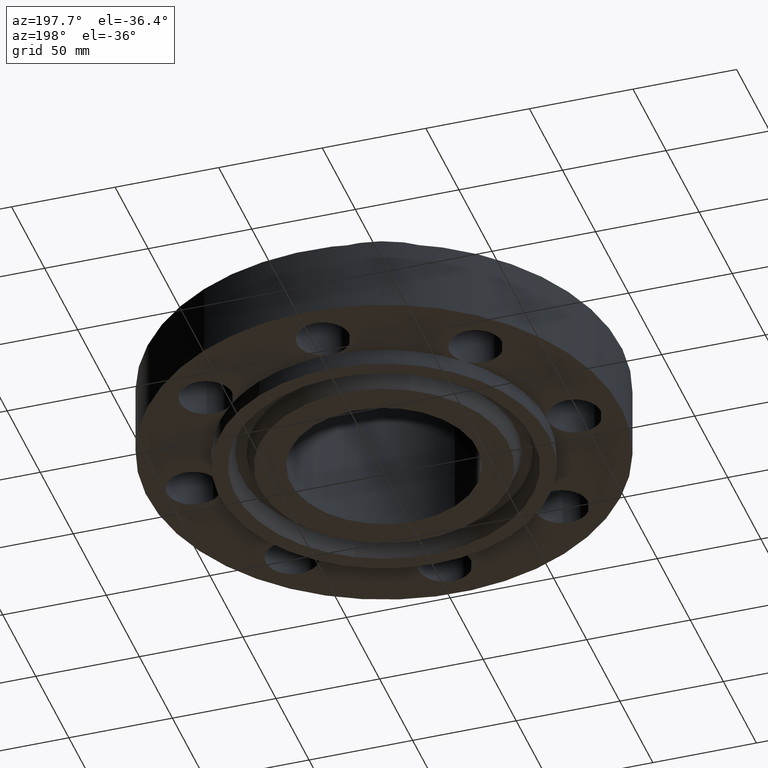
[diagram: clean part render]
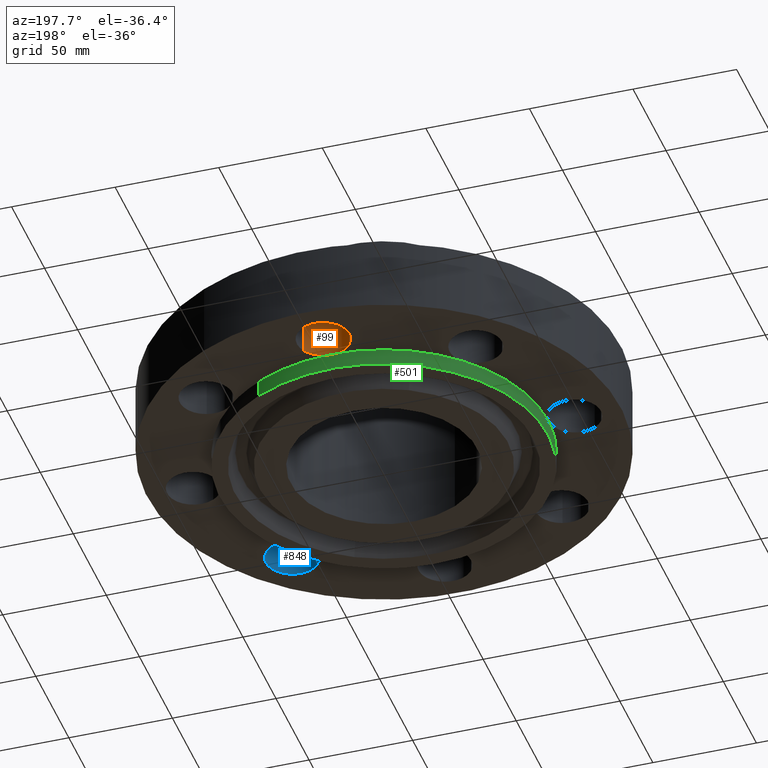
[diagram: same view with three faces highlighted in distinct colors, each labeled with its STEP entity id]
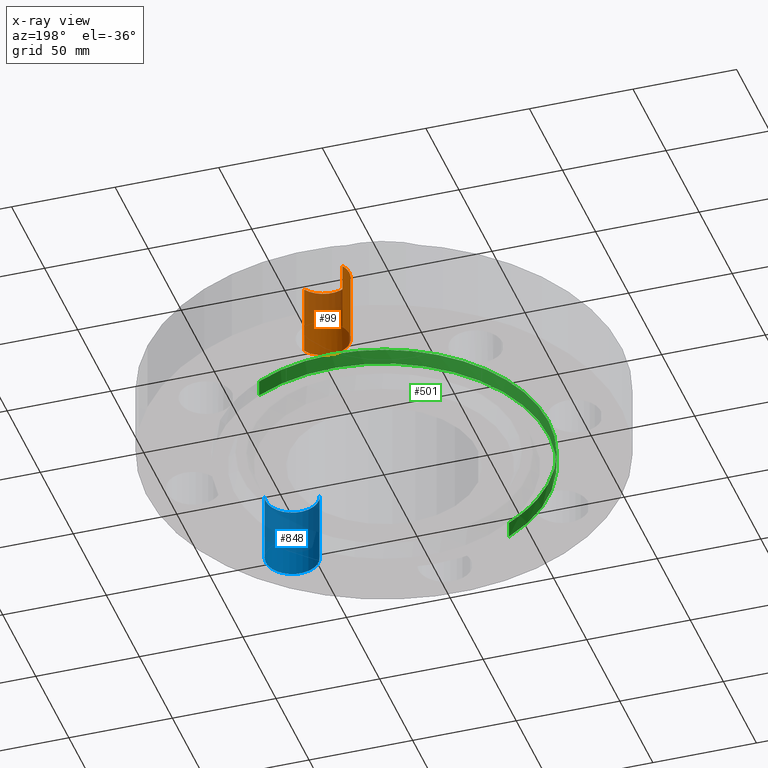
[diagram: x-ray of the same camera — body ghosted, the three highlighted faces saturated]
A machine part, auxiliary view with three faces highlighted in distinct colors.
The next image is the same camera in x-ray (body ghosted, the three faces saturated) — at least one of them is partly hidden behind the body in this view.
Their STEP definitions:

[orange] entity #99 — the highlighted cylindrical surface (edge-blend (fillet) strip) has radius 12.7 mm, axis along (0, -0, -1).
#38=AXIS2_PLACEMENT_3D('Cylinder Axis2P3D',#35,#36,#37) ;
#77=AXIS2_PLACEMENT_3D('Circle Axis2P3D',#75,#76,$) ;
#84=AXIS2_PLACEMENT_3D('Circle Axis2P3D',#82,#83,$) ;
#89=AXIS2_PLACEMENT_3D('Circle Axis2P3D',#87,#88,$) ;
#35=CARTESIAN_POINT('Axis2P3D Location',(0.,3.62500000001,1.37606299213)) ;
#40=CARTESIAN_POINT('Line Origine',(-0.438791280947,3.86471276932,0.690000000003)) ;
#44=CARTESIAN_POINT('Vertex',(-0.438791280947,3.86471276932,0.)) ;
#46=CARTESIAN_POINT('Vertex',(-0.438791280947,3.86471276932,1.38000000001)) ;
#53=CARTESIAN_POINT('Vertex',(0.438791280947,3.38528723071,0.)) ;
#56=CARTESIAN_POINT('Line Origine',(0.438791280947,3.38528723071,0.690000000003)) ;
#60=CARTESIAN_POINT('Vertex',(0.438791280947,3.38528723071,1.38000000001)) ;
#75=CARTESIAN_POINT('Axis2P3D Location',(0.,3.62500000001,0.)) ;
#79=CARTESIAN_POINT('Vertex',(-1.33945743657E-015,3.12500000001,2.79741234551E-016)) ;
#82=CARTESIAN_POINT('Axis2P3D Location',(0.,3.62500000001,0.)) ;
#87=CARTESIAN_POINT('Axis2P3D Location',(0.,3.62500000001,1.38000000001)) ;
#36=DIRECTION('Axis2P3D Direction',(0.,-0.,-0.0393700787402)) ;
#37=DIRECTION('Axis2P3D XDirection',(0.0345504945626,-0.0188750212049,0.)) ;
#41=DIRECTION('Vector Direction',(0.,0.,-0.0393700787402)) ;
#57=DIRECTION('Vector Direction',(0.,0.,-0.0393700787402)) ;
#76=DIRECTION('Axis2P3D Direction',(0.,-0.,-0.0393700787402)) ;
#83=DIRECTION('Axis2P3D Direction',(0.,-0.,-0.0393700787402)) ;
#88=DIRECTION('Axis2P3D Direction',(0.,-0.,-0.0393700787402)) ;
#42=VECTOR('Line Direction',#41,0.0393700787402) ;
#58=VECTOR('Line Direction',#57,0.0393700787402) ;
#93=ORIENTED_EDGE('',*,*,#62,.F.) ;
#94=ORIENTED_EDGE('',*,*,#81,.T.) ;
#95=ORIENTED_EDGE('',*,*,#86,.T.) ;
#96=ORIENTED_EDGE('',*,*,#48,.T.) ;
#97=ORIENTED_EDGE('',*,*,#91,.F.) ;
#99=ADVANCED_FACE('PartBody',(#98),#39,.F.) ;
#78=CIRCLE('generated circle',#77,0.500000000002) ;
#85=CIRCLE('generated circle',#84,0.500000000002) ;
#90=CIRCLE('generated circle',#89,0.500000000002) ;
#39=CYLINDRICAL_SURFACE('generated cylinder',#38,0.500000000002) ;
#48=EDGE_CURVE('',#45,#47,#43,.F.) ;
#62=EDGE_CURVE('',#54,#61,#59,.F.) ;
#81=EDGE_CURVE('',#54,#80,#78,.T.) ;
#86=EDGE_CURVE('',#80,#45,#85,.T.) ;
#91=EDGE_CURVE('',#61,#47,#90,.T.) ;
#92=EDGE_LOOP('',(#93,#94,#95,#96,#97)) ;
#98=FACE_OUTER_BOUND('',#92,.T.) ;
#43=LINE('Line',#40,#42) ;
#59=LINE('Line',#56,#58) ;
#45=VERTEX_POINT('',#44) ;
#47=VERTEX_POINT('',#46) ;
#54=VERTEX_POINT('',#53) ;
#61=VERTEX_POINT('',#60) ;
#80=VERTEX_POINT('',#79) ;

[blue] entity #848 — the highlighted cylindrical surface (edge-blend (fillet) strip) has radius 12.7 mm, axis along (-0, 0, -1).
#683=AXIS2_PLACEMENT_3D('Circle Axis2P3D',#681,#682,$) ;
#821=AXIS2_PLACEMENT_3D('Cylinder Axis2P3D',#818,#819,#820) ;
#839=AXIS2_PLACEMENT_3D('Circle Axis2P3D',#837,#838,$) ;
#678=CARTESIAN_POINT('Vertex',(2.08348726682,-2.70403184738,0.)) ;
#681=CARTESIAN_POINT('Axis2P3D Location',(2.56326208181,-2.56326208181,0.)) ;
#685=CARTESIAN_POINT('Vertex',(3.04303689681,-2.42249231624,0.)) ;
#818=CARTESIAN_POINT('Axis2P3D Location',(2.56326208181,-2.56326208181,1.37606299213)) ;
#823=CARTESIAN_POINT('Line Origine',(3.04303689681,-2.42249231624,0.690000000003)) ;
#827=CARTESIAN_POINT('Vertex',(3.04303689681,-2.42249231624,1.38000000001)) ;
#830=CARTESIAN_POINT('Line Origine',(2.08348726682,-2.70403184738,0.690000000003)) ;
#834=CARTESIAN_POINT('Vertex',(2.08348726682,-2.70403184738,1.38000000001)) ;
#837=CARTESIAN_POINT('Axis2P3D Location',(2.56326208181,-2.56326208181,1.38000000001)) ;
#682=DIRECTION('Axis2P3D Direction',(0.,0.,-0.0393700787402)) ;
#819=DIRECTION('Axis2P3D Direction',(-0.,0.,-0.0393700787402)) ;
#820=DIRECTION('Axis2P3D XDirection',(-0.0377775444876,-0.0110842335096,0.)) ;
#824=DIRECTION('Vector Direction',(0.,0.,-0.0393700787402)) ;
#831=DIRECTION('Vector Direction',(0.,0.,-0.0393700787402)) ;
#838=DIRECTION('Axis2P3D Direction',(-0.,0.,-0.0393700787402)) ;
#825=VECTOR('Line Direction',#824,0.0393700787402) ;
#832=VECTOR('Line Direction',#831,0.0393700787402) ;
#843=ORIENTED_EDGE('',*,*,#829,.F.) ;
#844=ORIENTED_EDGE('',*,*,#687,.T.) ;
#845=ORIENTED_EDGE('',*,*,#836,.T.) ;
#846=ORIENTED_EDGE('',*,*,#841,.F.) ;
#848=ADVANCED_FACE('PartBody',(#847),#822,.F.) ;
#684=CIRCLE('generated circle',#683,0.500000000002) ;
#840=CIRCLE('generated circle',#839,0.500000000002) ;
#822=CYLINDRICAL_SURFACE('generated cylinder',#821,0.500000000002) ;
#687=EDGE_CURVE('',#686,#679,#684,.T.) ;
#829=EDGE_CURVE('',#686,#828,#826,.F.) ;
#836=EDGE_CURVE('',#679,#835,#833,.F.) ;
#841=EDGE_CURVE('',#828,#835,#840,.T.) ;
#842=EDGE_LOOP('',(#843,#844,#845,#846)) ;
#847=FACE_OUTER_BOUND('',#842,.T.) ;
#826=LINE('Line',#823,#825) ;
#833=LINE('Line',#830,#832) ;
#679=VERTEX_POINT('',#678) ;
#686=VERTEX_POINT('',#685) ;
#828=VERTEX_POINT('',#827) ;
#835=VERTEX_POINT('',#834) ;

[green] entity #501 — the highlighted cylindrical surface (partial cylindrical patch) has radius 79.375 mm, axis along (0, 0, -1).
#435=AXIS2_PLACEMENT_3D('Cylinder Axis2P3D',#432,#433,#434) ;
#439=AXIS2_PLACEMENT_3D('Circle Axis2P3D',#437,#438,$) ;
#455=AXIS2_PLACEMENT_3D('Circle Axis2P3D',#453,#454,$) ;
#462=AXIS2_PLACEMENT_3D('Circle Axis2P3D',#460,#461,$) ;
#469=AXIS2_PLACEMENT_3D('Circle Axis2P3D',#467,#468,$) ;
#476=AXIS2_PLACEMENT_3D('Circle Axis2P3D',#474,#475,$) ;
#481=AXIS2_PLACEMENT_3D('Circle Axis2P3D',#479,#480,$) ;
#79=CARTESIAN_POINT('Vertex',(-1.33945743657E-015,3.12500000001,2.79741234551E-016)) ;
#432=CARTESIAN_POINT('Axis2P3D Location',(0.,0.,1.53350000001)) ;
#437=CARTESIAN_POINT('Axis2P3D Location',(0.,0.,-0.313000000001)) ;
#441=CARTESIAN_POINT('Vertex',(-1.49820480814,-2.74244550592,-0.313000000001)) ;
#443=CARTESIAN_POINT('Vertex',(1.49820480814,2.74244550592,-0.313000000001)) ;
#446=CARTESIAN_POINT('Line Origine',(-1.49820480814,-2.74244550592,-0.156500000001)) ;
#450=CARTESIAN_POINT('Vertex',(-1.49820480814,-2.74244550592,2.79741234551E-016)) ;
#453=CARTESIAN_POINT('Axis2P3D Location',(0.,0.,2.79741234551E-016)) ;
#457=CARTESIAN_POINT('Vertex',(-2.20970869122,-2.20970869122,0.)) ;
#460=CARTESIAN_POINT('Axis2P3D Location',(0.,0.,2.79741234551E-016)) ;
#464=CARTESIAN_POINT('Vertex',(-3.12500000001,-1.67844740731E-015,0.)) ;
#467=CARTESIAN_POINT('Axis2P3D Location',(0.,0.,2.79741234551E-016)) ;
#471=CARTESIAN_POINT('Vertex',(-2.20970869122,2.20970869122,0.)) ;
#474=CARTESIAN_POINT('Axis2P3D Location',(0.,0.,2.79741234551E-016)) ;
#479=CARTESIAN_POINT('Axis2P3D Location',(0.,0.,2.79741234551E-016)) ;
#483=CARTESIAN_POINT('Vertex',(1.49820480814,2.74244550592,2.79741234551E-016)) ;
#486=CARTESIAN_POINT('Line Origine',(1.49820480814,2.74244550592,-0.156500000001)) ;
#433=DIRECTION('Axis2P3D Direction',(0.,0.,-0.0393700787402)) ;
#434=DIRECTION('Axis2P3D XDirection',(0.0188750212049,0.0345504945626,0.)) ;
#438=DIRECTION('Axis2P3D Direction',(0.,0.,-0.0393700787402)) ;
#447=DIRECTION('Vector Direction',(0.,0.,-0.0393700787402)) ;
#454=DIRECTION('Axis2P3D Direction',(0.,0.,-0.0393700787402)) ;
#461=DIRECTION('Axis2P3D Direction',(0.,0.,-0.0393700787402)) ;
#468=DIRECTION('Axis2P3D Direction',(0.,0.,-0.0393700787402)) ;
#475=DIRECTION('Axis2P3D Direction',(0.,0.,-0.0393700787402)) ;
#480=DIRECTION('Axis2P3D Direction',(0.,0.,-0.0393700787402)) ;
#487=DIRECTION('Vector Direction',(0.,0.,-0.0393700787402)) ;
#448=VECTOR('Line Direction',#447,0.0393700787402) ;
#488=VECTOR('Line Direction',#487,0.0393700787402) ;
#492=ORIENTED_EDGE('',*,*,#445,.F.) ;
#493=ORIENTED_EDGE('',*,*,#452,.T.) ;
#494=ORIENTED_EDGE('',*,*,#459,.T.) ;
#495=ORIENTED_EDGE('',*,*,#466,.T.) ;
#496=ORIENTED_EDGE('',*,*,#473,.T.) ;
#497=ORIENTED_EDGE('',*,*,#478,.T.) ;
#498=ORIENTED_EDGE('',*,*,#485,.T.) ;
#499=ORIENTED_EDGE('',*,*,#490,.F.) ;
#501=ADVANCED_FACE('PartBody',(#500),#436,.T.) ;
#440=CIRCLE('generated circle',#439,3.12500000001) ;
#456=CIRCLE('generated circle',#455,3.12500000001) ;
#463=CIRCLE('generated circle',#462,3.12500000001) ;
#470=CIRCLE('generated circle',#469,3.12500000001) ;
#477=CIRCLE('generated circle',#476,3.12500000001) ;
#482=CIRCLE('generated circle',#481,3.12500000001) ;
#436=CYLINDRICAL_SURFACE('generated cylinder',#435,3.12500000001) ;
#445=EDGE_CURVE('',#442,#444,#440,.T.) ;
#452=EDGE_CURVE('',#442,#451,#449,.F.) ;
#459=EDGE_CURVE('',#451,#458,#456,.T.) ;
#466=EDGE_CURVE('',#458,#465,#463,.T.) ;
#473=EDGE_CURVE('',#465,#472,#470,.T.) ;
#478=EDGE_CURVE('',#472,#80,#477,.T.) ;
#485=EDGE_CURVE('',#80,#484,#482,.T.) ;
#490=EDGE_CURVE('',#444,#484,#489,.F.) ;
#491=EDGE_LOOP('',(#492,#493,#494,#495,#496,#497,#498,#499)) ;
#500=FACE_OUTER_BOUND('',#491,.T.) ;
#449=LINE('Line',#446,#448) ;
#489=LINE('Line',#486,#488) ;
#80=VERTEX_POINT('',#79) ;
#442=VERTEX_POINT('',#441) ;
#444=VERTEX_POINT('',#443) ;
#451=VERTEX_POINT('',#450) ;
#458=VERTEX_POINT('',#457) ;
#465=VERTEX_POINT('',#464) ;
#472=VERTEX_POINT('',#471) ;
#484=VERTEX_POINT('',#483) ;